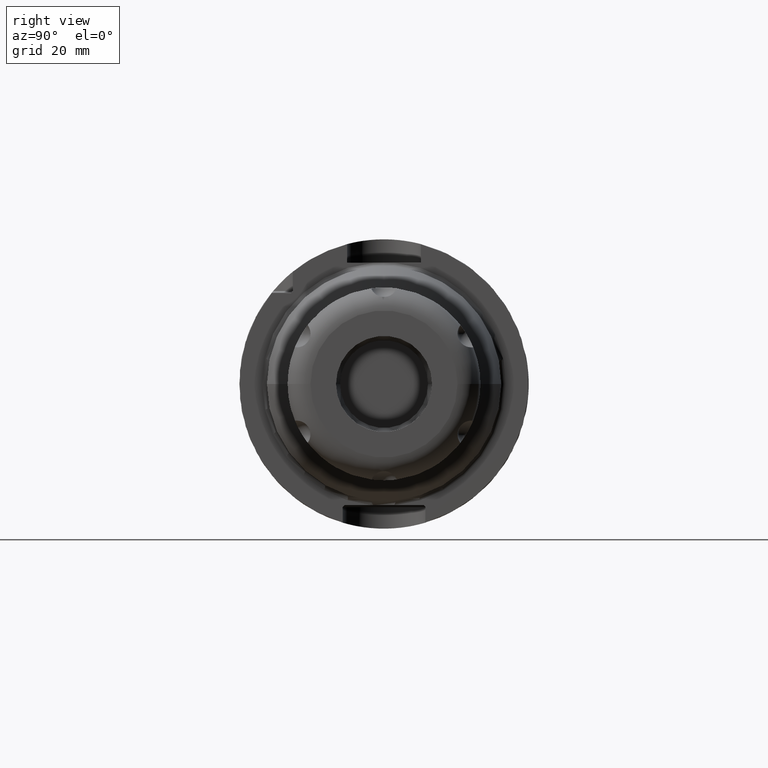
[diagram: clean part render]
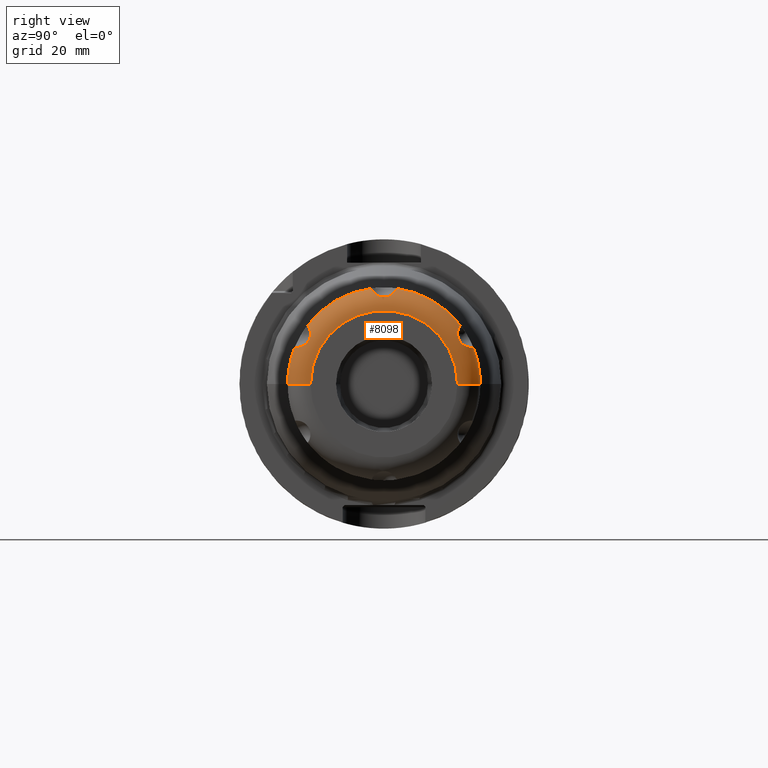
[diagram: same view with one face highlighted and labeled with its STEP entity id]
A machine part, right view. The second image highlights one B-rep face of the part: STEP entity #8098.
In plain terms, the highlighted toroidal blend (fillet) surface has major radius 16 mm and minor (blend) radius 5 mm.
Its self-contained STEP definition (entity closure, byte-faithful):
#6862=CARTESIAN_POINT('',(1.5E1,0.E0,0.E0));
#6863=DIRECTION('',(1.E0,0.E0,0.E0));
#6864=DIRECTION('',(0.E0,-9.245432411526E-1,3.810771512948E-1));
#6865=AXIS2_PLACEMENT_3D('',#6862,#6863,#6864);
#6875=CARTESIAN_POINT('',(1.5E1,0.E0,0.E0));
#6876=DIRECTION('',(1.E0,0.E0,0.E0));
#6877=DIRECTION('',(0.E0,1.E0,0.E0));
#6878=AXIS2_PLACEMENT_3D('',#6875,#6876,#6877);
#6888=CARTESIAN_POINT('',(1.5E1,0.E0,0.E0));
#6889=DIRECTION('',(1.E0,0.E0,0.E0));
#6890=DIRECTION('',(0.E0,7.922941143994E-1,6.101393580880E-1));
#6891=AXIS2_PLACEMENT_3D('',#6888,#6889,#6890);
#6901=CARTESIAN_POINT('',(1.5E1,0.E0,0.E0));
#6902=DIRECTION('',(1.E0,0.E0,0.E0));
#6903=DIRECTION('',(0.E0,-1.322491267532E-1,9.912165093828E-1));
#6904=AXIS2_PLACEMENT_3D('',#6901,#6902,#6903);
#6906=CARTESIAN_POINT('',(1.5E1,-1.663817640239E1,1.281292651985E1));
#6907=CARTESIAN_POINT('',(1.542260382297E1,-1.663817640239E1,1.281292651985E1));
#6908=CARTESIAN_POINT('',(1.620313306297E1,-1.657110513877E1,1.273029712288E1));
#6909=CARTESIAN_POINT('',(1.721032189955E1,-1.635348489011E1,1.239724443733E1));
#6910=CARTESIAN_POINT('',(1.796646120495E1,-1.613633818709E1,1.190344607829E1));
#6911=CARTESIAN_POINT('',(1.849631223424E1,-1.600512195680E1,1.130002378843E1));
#6912=CARTESIAN_POINT('',(1.881851642939E1,-1.600255867405E1,1.067711197803E1));
#6913=CARTESIAN_POINT('',(1.899747025112E1,-1.612859999176E1,1.005968142353E1));
#6914=CARTESIAN_POINT('',(1.905651691421E1,-1.638928062233E1,9.465955173356E0));
#6915=CARTESIAN_POINT('',(1.899855168311E1,-1.677229127502E1,8.942233977049E0));
#6916=CARTESIAN_POINT('',(1.882073881144E1,-1.724322851584E1,8.523464182632E0));
#6917=CARTESIAN_POINT('',(1.850012258001E1,-1.778357127446E1,8.212980108285E0));
#6918=CARTESIAN_POINT('',(1.797026415788E1,-1.837364039603E1,8.023297432454E0));
#6919=CARTESIAN_POINT('',(1.721365438664E1,-1.891149901697E1,7.963878214614E0));
#6920=CARTESIAN_POINT('',(1.620385583651E1,-1.931031893837E1,7.985820134037E0));
#6921=CARTESIAN_POINT('',(1.542278776310E1,-1.941540806421E1,8.002620177191E0));
#6922=CARTESIAN_POINT('',(1.5E1,-1.941540806421E1,8.002620177191E0));
#6924=CARTESIAN_POINT('',(1.5E1,1.6E1,0.E0));
#6925=DIRECTION('',(0.E0,0.E0,1.E0));
#6926=DIRECTION('',(1.E0,0.E0,0.E0));
#6927=AXIS2_PLACEMENT_3D('',#6924,#6925,#6926);
#6929=CARTESIAN_POINT('',(2.E1,0.E0,0.E0));
#6930=DIRECTION('',(1.E0,0.E0,0.E0));
#6931=DIRECTION('',(0.E0,1.E0,0.E0));
#6932=AXIS2_PLACEMENT_3D('',#6929,#6930,#6931);
#6934=CARTESIAN_POINT('',(1.5E1,-1.6E1,0.E0));
#6935=DIRECTION('',(0.E0,0.E0,-1.E0));
#6936=DIRECTION('',(1.E0,0.E0,0.E0));
#6937=AXIS2_PLACEMENT_3D('',#6934,#6935,#6936);
#6939=CARTESIAN_POINT('',(1.5E1,2.777231661817E0,2.081554669704E1));
#6940=CARTESIAN_POINT('',(1.542279308740E1,2.777231661817E0,2.081554669704E1));
#6941=CARTESIAN_POINT('',(1.620351537859E1,2.739151992344E0,2.071602539700E1));
#6942=CARTESIAN_POINT('',(1.720986380111E1,2.559657831356E0,2.036131206333E1));
#6943=CARTESIAN_POINT('',(1.796580358001E1,2.240885672754E0,1.992664467313E1));
#6944=CARTESIAN_POINT('',(1.849586568209E1,1.784128736772E0,1.951125993445E1));
#6945=CARTESIAN_POINT('',(1.881840851993E1,1.245666636931E0,1.919729903626E1));
#6946=CARTESIAN_POINT('',(1.899739555758E1,6.480299346741E-1,1.899770356738E1));
#6947=CARTESIAN_POINT('',(1.905653147682E1,3.304264254549E-3,1.892649438425E1));
#6948=CARTESIAN_POINT('',(1.899856708399E1,-6.419000966049E-1,
1.899632929293E1));
#6949=CARTESIAN_POINT('',(1.882071227496E1,-1.240178294962E0,1.919483815452E1));
#6950=CARTESIAN_POINT('',(1.849996277309E1,-1.779348233488E0,1.950766056482E1));
#6951=CARTESIAN_POINT('',(1.796996918071E1,-2.238625056850E0,1.992389677228E1));
#6952=CARTESIAN_POINT('',(1.721330276995E1,-2.558901043962E0,2.035991541872E1));
#6953=CARTESIAN_POINT('',(1.620399013201E1,-2.739208883523E0,2.071608289612E1));
#6954=CARTESIAN_POINT('',(1.542285655785E1,-2.777231661817E0,2.081554669704E1));
#6955=CARTESIAN_POINT('',(1.5E1,-2.777231661817E0,2.081554669704E1));
#6983=CARTESIAN_POINT('',(1.5E1,1.941540806421E1,8.002620177191E0));
#6984=CARTESIAN_POINT('',(1.542325707458E1,1.941540806421E1,8.002620177191E0));
#6985=CARTESIAN_POINT('',(1.620474516175E1,1.930995255007E1,7.985797741421E0));
#6986=CARTESIAN_POINT('',(1.721177171600E1,1.891229200737E1,7.963913880881E0));
#6987=CARTESIAN_POINT('',(1.796789380952E1,1.837563068952E1,8.022984319062E0));
#6988=CARTESIAN_POINT('',(1.849767176471E1,1.778689293698E1,8.211545712075E0));
#6989=CARTESIAN_POINT('',(1.881971771201E1,1.724552496120E1,8.521723520229E0));
#6990=CARTESIAN_POINT('',(1.899817641664E1,1.677376327535E1,8.940562486847E0));
#6991=CARTESIAN_POINT('',(1.905656064326E1,1.639005406368E1,9.464510973236E0));
#6992=CARTESIAN_POINT('',(1.899767653405E1,1.612870488188E1,1.005902588282E1));
#6993=CARTESIAN_POINT('',(1.881828068856E1,1.600239281851E1,1.067795806539E1));
#6994=CARTESIAN_POINT('',(1.849540147324E1,1.600527619310E1,1.130136375713E1));
#6995=CARTESIAN_POINT('',(1.796542019372E1,1.613665472503E1,1.190434241237E1));
#6996=CARTESIAN_POINT('',(1.720900837144E1,1.635379583276E1,1.239775376259E1));
#6997=CARTESIAN_POINT('',(1.620357851316E1,1.657099171761E1,1.273011648800E1));
#6998=CARTESIAN_POINT('',(1.542283427679E1,1.663817640239E1,1.281292651985E1));
#6999=CARTESIAN_POINT('',(1.5E1,1.663817640239E1,1.281292651985E1));
#7823=CARTESIAN_POINT('',(2.E1,1.6E1,0.E0));
#7824=CARTESIAN_POINT('',(1.5E1,2.1E1,0.E0));
#7825=VERTEX_POINT('',#7823);
#7826=VERTEX_POINT('',#7824);
#7831=CARTESIAN_POINT('',(2.E1,-1.6E1,0.E0));
#7832=CARTESIAN_POINT('',(1.5E1,-2.1E1,0.E0));
#7833=VERTEX_POINT('',#7831);
#7834=VERTEX_POINT('',#7832);
#7851=CARTESIAN_POINT('',(1.5E1,1.941540806421E1,8.002620177191E0));
#7853=VERTEX_POINT('',#7851);
#7855=CARTESIAN_POINT('',(1.5E1,1.663817640239E1,1.281292651985E1));
#7857=VERTEX_POINT('',#7855);
#7859=CARTESIAN_POINT('',(1.5E1,2.777231661817E0,2.081554669704E1));
#7861=VERTEX_POINT('',#7859);
#7863=CARTESIAN_POINT('',(1.5E1,-2.777231661817E0,2.081554669704E1));
#7865=VERTEX_POINT('',#7863);
#7867=CARTESIAN_POINT('',(1.5E1,-1.663817640239E1,1.281292651985E1));
#7869=VERTEX_POINT('',#7867);
#7871=CARTESIAN_POINT('',(1.5E1,-1.941540806421E1,8.002620177191E0));
#7873=VERTEX_POINT('',#7871);
#8076=CARTESIAN_POINT('',(1.5E1,0.E0,0.E0));
#8077=DIRECTION('',(-1.E0,0.E0,0.E0));
#8078=DIRECTION('',(0.E0,1.E0,0.E0));
#8079=AXIS2_PLACEMENT_3D('',#8076,#8077,#8078);
#8080=TOROIDAL_SURFACE('',#8079,1.6E1,5.E0);
#8081=ORIENTED_EDGE('',*,*,#8067,.F.);
#8082=ORIENTED_EDGE('',*,*,#8057,.F.);
#8084=ORIENTED_EDGE('',*,*,#8083,.F.);
#8085=ORIENTED_EDGE('',*,*,#8049,.F.);
#8087=ORIENTED_EDGE('',*,*,#8086,.F.);
#8088=ORIENTED_EDGE('',*,*,#8041,.F.);
#8090=ORIENTED_EDGE('',*,*,#8089,.F.);
#8092=ORIENTED_EDGE('',*,*,#8091,.T.);
#8094=ORIENTED_EDGE('',*,*,#8093,.T.);
#8095=ORIENTED_EDGE('',*,*,#8034,.F.);
#8096=EDGE_LOOP('',(#8081,#8082,#8084,#8085,#8087,#8088,#8090,#8092,#8094,
#8095));
#8097=FACE_OUTER_BOUND('',#8096,.F.);
#8098=ADVANCED_FACE('',(#8097),#8080,.T.);
#6866=CIRCLE('',#6865,2.1E1);
#6879=CIRCLE('',#6878,2.1E1);
#6892=CIRCLE('',#6891,2.1E1);
#6905=CIRCLE('',#6904,2.1E1);
#6923=B_SPLINE_CURVE_WITH_KNOTS('',3,(#6906,#6907,#6908,#6909,#6910,#6911,#6912,
#6913,#6914,#6915,#6916,#6917,#6918,#6919,#6920,#6921,#6922),.UNSPECIFIED.,.F.,
.F.,(4,1,1,1,1,1,1,1,1,1,1,1,1,1,4),(0.E0,7.142857142857E-2,1.428571428571E-1,
2.142857142857E-1,2.857142857143E-1,3.571428571429E-1,4.285714285714E-1,5.E-1,
5.714285714286E-1,6.428571428571E-1,7.142857142857E-1,7.857142857143E-1,
8.571428571429E-1,9.285714285714E-1,1.E0),.UNSPECIFIED.);
#6928=CIRCLE('',#6927,5.E0);
#6933=CIRCLE('',#6932,1.6E1);
#6938=CIRCLE('',#6937,5.E0);
#6956=B_SPLINE_CURVE_WITH_KNOTS('',3,(#6939,#6940,#6941,#6942,#6943,#6944,#6945,
#6946,#6947,#6948,#6949,#6950,#6951,#6952,#6953,#6954,#6955),.UNSPECIFIED.,.F.,
.F.,(4,1,1,1,1,1,1,1,1,1,1,1,1,1,4),(0.E0,7.142857142857E-2,1.428571428571E-1,
2.142857142857E-1,2.857142857143E-1,3.571428571429E-1,4.285714285714E-1,5.E-1,
5.714285714286E-1,6.428571428571E-1,7.142857142857E-1,7.857142857143E-1,
8.571428571429E-1,9.285714285714E-1,1.E0),.UNSPECIFIED.);
#7000=B_SPLINE_CURVE_WITH_KNOTS('',3,(#6983,#6984,#6985,#6986,#6987,#6988,#6989,
#6990,#6991,#6992,#6993,#6994,#6995,#6996,#6997,#6998,#6999),.UNSPECIFIED.,.F.,
.F.,(4,1,1,1,1,1,1,1,1,1,1,1,1,1,4),(0.E0,7.142857142857E-2,1.428571428571E-1,
2.142857142857E-1,2.857142857143E-1,3.571428571429E-1,4.285714285714E-1,5.E-1,
5.714285714286E-1,6.428571428571E-1,7.142857142857E-1,7.857142857143E-1,
8.571428571429E-1,9.285714285714E-1,1.E0),.UNSPECIFIED.);
#8034=EDGE_CURVE('',#7873,#7834,#6866,.T.);
#8041=EDGE_CURVE('',#7826,#7853,#6879,.T.);
#8049=EDGE_CURVE('',#7857,#7861,#6892,.T.);
#8057=EDGE_CURVE('',#7865,#7869,#6905,.T.);
#8067=EDGE_CURVE('',#7869,#7873,#6923,.T.);
#8083=EDGE_CURVE('',#7861,#7865,#6956,.T.);
#8086=EDGE_CURVE('',#7853,#7857,#7000,.T.);
#8089=EDGE_CURVE('',#7825,#7826,#6928,.T.);
#8091=EDGE_CURVE('',#7825,#7833,#6933,.T.);
#8093=EDGE_CURVE('',#7833,#7834,#6938,.T.);